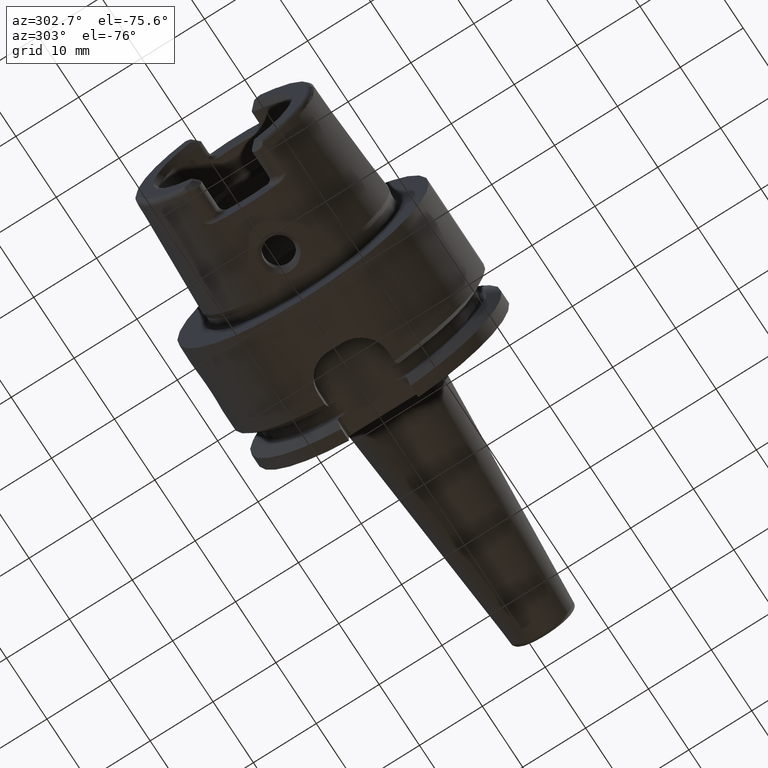
[diagram: clean part render]
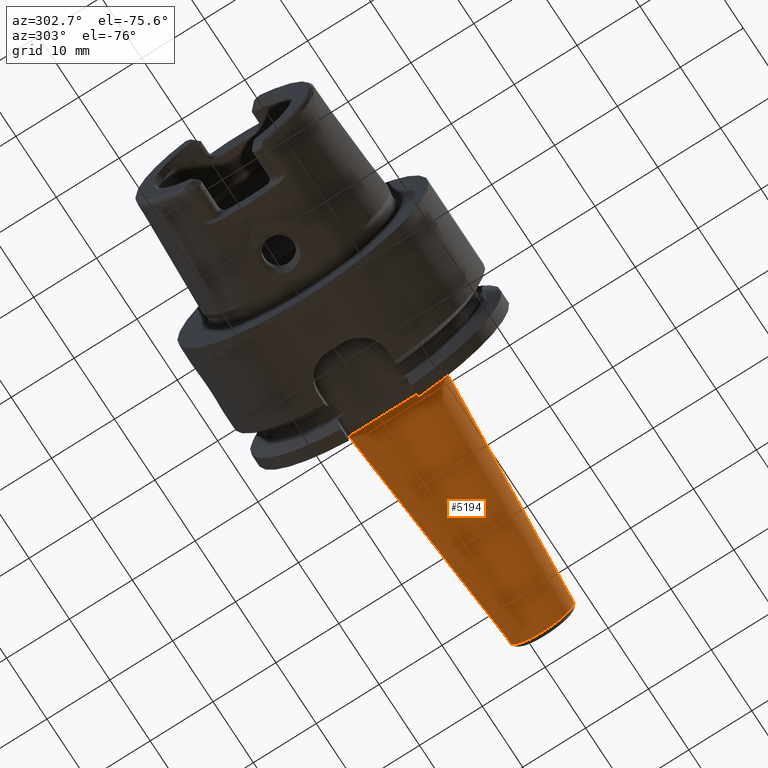
[diagram: same view with one face highlighted and labeled with its STEP entity id]
A machine part, auxiliary view. The second image highlights one B-rep face of the part: STEP entity #5194.
In plain terms, the highlighted conical surface has half-angle 4.5 deg.
Its self-contained STEP definition (entity closure, byte-faithful):
#1871=CARTESIAN_POINT('',(5.926276727658E1,0.E0,0.E0));
#1872=DIRECTION('',(-1.E0,0.E0,0.E0));
#1873=DIRECTION('',(0.E0,1.E0,0.E0));
#1874=AXIS2_PLACEMENT_3D('',#1871,#1872,#1873);
#1876=DIRECTION('',(-9.969173337331E-1,7.845909572785E-2,1.493480746716E-13));
#1877=VECTOR('',#1876,3.758554917259E1);
#1878=CARTESIAN_POINT('',(5.926276727658E1,5.058021473660E0,
-4.043889288971E-12));
#1879=LINE('',#1878,#1877);
#1880=CARTESIAN_POINT('',(2.179308180854E1,0.E0,0.E0));
#1881=DIRECTION('',(1.E0,0.E0,0.E0));
#1882=DIRECTION('',(0.E0,-1.E0,0.E0));
#1883=AXIS2_PLACEMENT_3D('',#1880,#1881,#1882);
#1885=DIRECTION('',(-9.969173337331E-1,-7.845909572785E-2,-1.493273600375E-13));
#1886=VECTOR('',#1885,3.758554917259E1);
#1887=CARTESIAN_POINT('',(5.926276727658E1,-5.058021473660E0,
4.043732937679E-12));
#1888=LINE('',#1887,#1886);
#3138=CARTESIAN_POINT('',(2.179308180854E1,-8.006949674176E0,0.E0));
#3139=CARTESIAN_POINT('',(2.179308180854E1,8.006949674176E0,0.E0));
#3140=VERTEX_POINT('',#3138);
#3141=VERTEX_POINT('',#3139);
#3142=CARTESIAN_POINT('',(5.926276727658E1,5.058021473660E0,0.E0));
#3143=CARTESIAN_POINT('',(5.926276727658E1,-5.058021473660E0,0.E0));
#3144=VERTEX_POINT('',#3142);
#3145=VERTEX_POINT('',#3143);
#5183=CARTESIAN_POINT('',(4.052792454256E1,0.E0,0.E0));
#5184=DIRECTION('',(-1.E0,0.E0,0.E0));
#5185=DIRECTION('',(0.E0,1.E0,0.E0));
#5186=AXIS2_PLACEMENT_3D('',#5183,#5184,#5185);
#5187=CONICAL_SURFACE('',#5186,6.532485573918E0,4.5E0);
#5188=ORIENTED_EDGE('',*,*,#5174,.F.);
#5189=ORIENTED_EDGE('',*,*,#5149,.T.);
#5190=ORIENTED_EDGE('',*,*,#5119,.F.);
#5191=ORIENTED_EDGE('',*,*,#5146,.F.);
#5192=EDGE_LOOP('',(#5188,#5189,#5190,#5191));
#5193=FACE_OUTER_BOUND('',#5192,.F.);
#5194=ADVANCED_FACE('',(#5193),#5187,.T.);
#1875=CIRCLE('',#1874,5.058021473660E0);
#1884=CIRCLE('',#1883,8.006949674176E0);
#5119=EDGE_CURVE('',#3140,#3141,#1884,.T.);
#5146=EDGE_CURVE('',#3145,#3140,#1888,.T.);
#5149=EDGE_CURVE('',#3144,#3141,#1879,.T.);
#5174=EDGE_CURVE('',#3144,#3145,#1875,.T.);